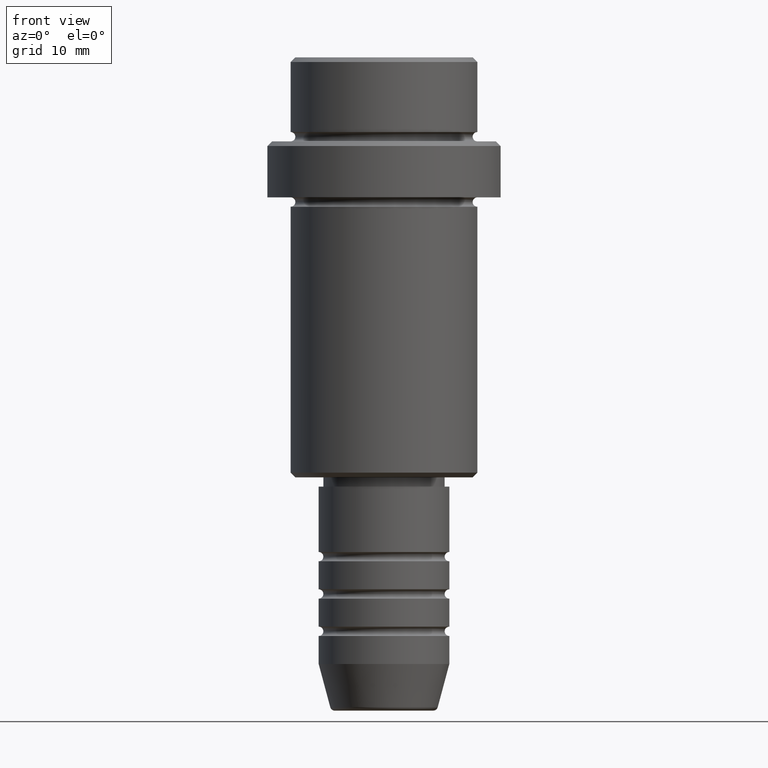
[diagram: clean part render]
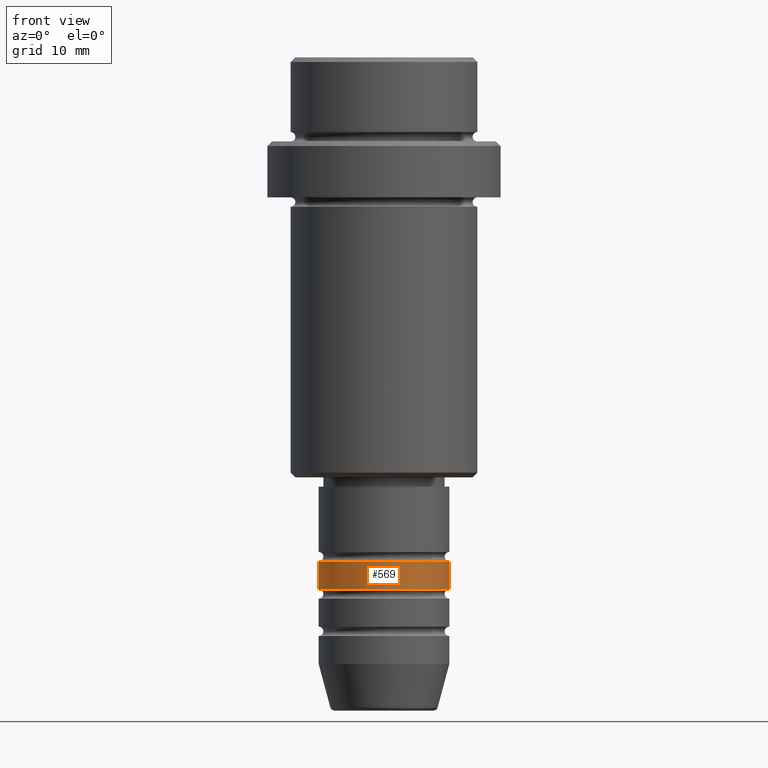
[diagram: same view with one face highlighted and labeled with its STEP entity id]
A machine part, front view. The second image highlights one B-rep face of the part: STEP entity #569.
In plain terms, the highlighted cylindrical surface (partial cylindrical patch) has radius 7 mm, axis along (-0, -0, 1).
Its self-contained STEP definition (entity closure, byte-faithful):
#41 = DIRECTION ( 'NONE',  ( 1.000000000000000000, 0.000000000000000000, 0.000000000000000000 ) ) ;
#70 = VERTEX_POINT ( 'NONE', #997 ) ;
#113 = DIRECTION ( 'NONE',  ( -0.000000000000000000, -0.000000000000000000, 1.000000000000000000 ) ) ;
#131 = LINE ( 'NONE', #1318, #1341 ) ;
#199 = AXIS2_PLACEMENT_3D ( 'NONE', #230, #566, #877 ) ;
#230 = CARTESIAN_POINT ( 'NONE',  ( 0.000000000000000000, 0.000000000000000000, -56.99999999999989342 ) ) ;
#261 = DIRECTION ( 'NONE',  ( 1.000000000000000000, 0.000000000000000000, 0.000000000000000000 ) ) ;
#289 = CIRCLE ( 'NONE', #670, 7.000000000000000000 ) ;
#303 = CARTESIAN_POINT ( 'NONE',  ( 7.000000000000000000, 0.000000000000000000, 0.000000000000000000 ) ) ;
#365 = CARTESIAN_POINT ( 'NONE',  ( 0.000000000000000000, 0.000000000000000000, -53.99999999999988631 ) ) ;
#417 = DIRECTION ( 'NONE',  ( -0.000000000000000000, -0.000000000000000000, 1.000000000000000000 ) ) ;
#444 = EDGE_LOOP ( 'NONE', ( #1416, #850, #708, #1072 ) ) ;
#490 = DIRECTION ( 'NONE',  ( -0.000000000000000000, -0.000000000000000000, 1.000000000000000000 ) ) ;
#552 = CARTESIAN_POINT ( 'NONE',  ( 7.000000000000000000, 0.000000000000000000, -53.99999999999988631 ) ) ;
#566 = DIRECTION ( 'NONE',  ( -0.000000000000000000, -0.000000000000000000, 1.000000000000000000 ) ) ;
#569 = ADVANCED_FACE ( 'NONE', ( #589 ), #944, .T. ) ;
#589 = FACE_OUTER_BOUND ( 'NONE', #444, .T. ) ;
#670 = AXIS2_PLACEMENT_3D ( 'NONE', #365, #810, #261 ) ;
#703 = CARTESIAN_POINT ( 'NONE',  ( 0.000000000000000000, 0.000000000000000000, 0.000000000000000000 ) ) ;
#708 = ORIENTED_EDGE ( 'NONE', *, *, #789, .T. ) ;
#789 = EDGE_CURVE ( 'NONE', #1385, #1387, #1411, .T. ) ;
#805 = VERTEX_POINT ( 'NONE', #1299 ) ;
#810 = DIRECTION ( 'NONE',  ( -0.000000000000000000, -0.000000000000000000, 1.000000000000000000 ) ) ;
#822 = VECTOR ( 'NONE', #417, 1000.000000000000000 ) ;
#840 = AXIS2_PLACEMENT_3D ( 'NONE', #703, #490, #41 ) ;
#850 = ORIENTED_EDGE ( 'NONE', *, *, #1363, .T. ) ;
#877 = DIRECTION ( 'NONE',  ( 1.000000000000000000, 0.000000000000000000, 0.000000000000000000 ) ) ;
#900 = EDGE_CURVE ( 'NONE', #70, #805, #131, .T. ) ;
#944 = CYLINDRICAL_SURFACE ( 'NONE', #840, 7.000000000000000000 ) ;
#997 = CARTESIAN_POINT ( 'NONE',  ( -7.000000000000000000, 8.572527594031473190E-16, -56.99999999999989342 ) ) ;
#1023 = EDGE_CURVE ( 'NONE', #805, #1387, #289, .T. ) ;
#1055 = CIRCLE ( 'NONE', #199, 7.000000000000000000 ) ;
#1072 = ORIENTED_EDGE ( 'NONE', *, *, #1023, .F. ) ;
#1228 = CARTESIAN_POINT ( 'NONE',  ( 7.000000000000000000, 0.000000000000000000, -56.99999999999989342 ) ) ;
#1299 = CARTESIAN_POINT ( 'NONE',  ( -7.000000000000000000, 8.572527594031473190E-16, -53.99999999999988631 ) ) ;
#1318 = CARTESIAN_POINT ( 'NONE',  ( -7.000000000000000000, 8.572527594031473190E-16, 0.000000000000000000 ) ) ;
#1341 = VECTOR ( 'NONE', #113, 1000.000000000000000 ) ;
#1363 = EDGE_CURVE ( 'NONE', #70, #1385, #1055, .T. ) ;
#1385 = VERTEX_POINT ( 'NONE', #1228 ) ;
#1387 = VERTEX_POINT ( 'NONE', #552 ) ;
#1411 = LINE ( 'NONE', #303, #822 ) ;
#1416 = ORIENTED_EDGE ( 'NONE', *, *, #900, .F. ) ;